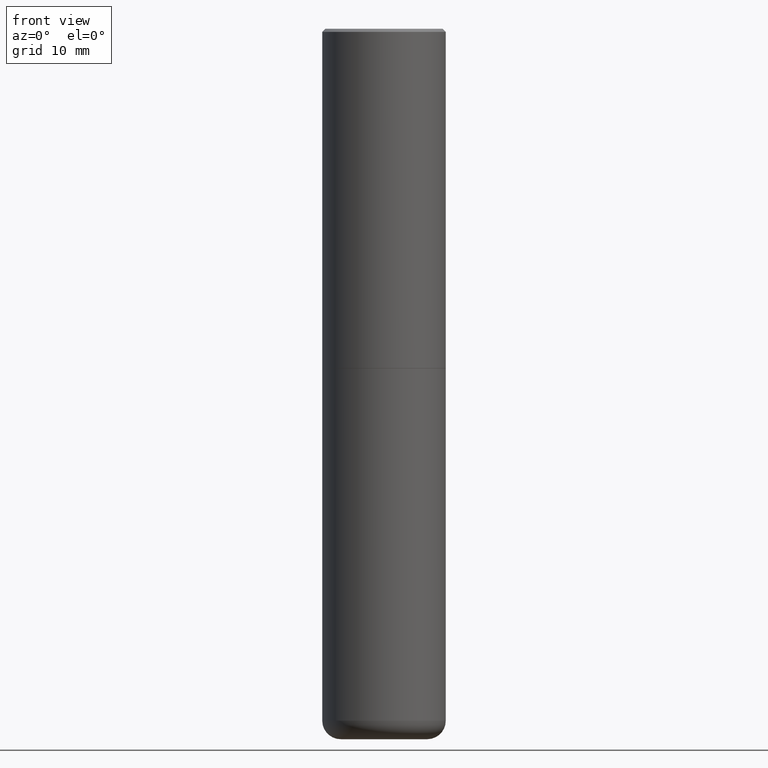
[diagram: clean part render]
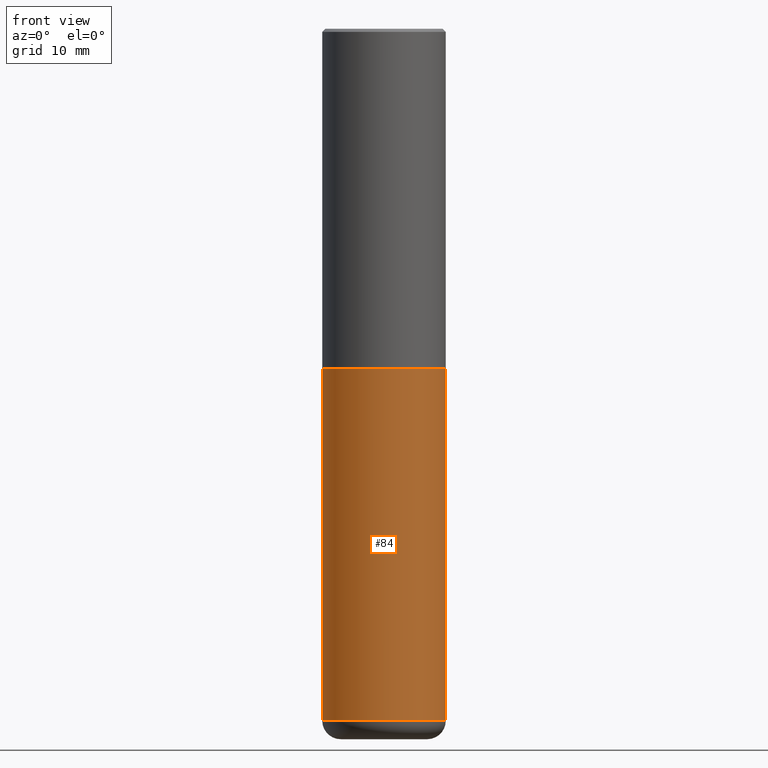
[diagram: same view with one face highlighted and labeled with its STEP entity id]
A machine part, front view. The second image highlights one B-rep face of the part: STEP entity #84.
In plain terms, the highlighted cylindrical surface (partial cylindrical patch) has radius 10 mm, axis along (-0, 0, 1).
Its self-contained STEP definition (entity closure, byte-faithful):
#7 = CARTESIAN_POINT ( 'NONE',  ( 5.295418152913293224E-29, -7.560453691130945845E-15, -2.165399999999999547 ) ) ;
#8 = VERTEX_POINT ( 'NONE', #70 ) ;
#9 = EDGE_CURVE ( 'NONE', #132, #200, #72, .T. ) ;
#22 = ORIENTED_EDGE ( 'NONE', *, *, #146, .T. ) ;
#32 = CARTESIAN_POINT ( 'NONE',  ( 1.078329470087335798E-28, -1.539568696362884818E-14, -4.409499999999999531 ) ) ;
#40 = DIRECTION ( 'NONE',  ( -2.445468806185136877E-29, 3.491481338843145188E-15, 1.000000000000000000 ) ) ;
#45 = LINE ( 'NONE', #109, #345 ) ;
#57 = DIRECTION ( 'NONE',  ( -2.445468806185136597E-29, 3.491481338843145583E-15, 1.000000000000000000 ) ) ;
#70 = CARTESIAN_POINT ( 'NONE',  ( 0.3936999999999998834, -1.814487936983393140E-14, -4.409499999999999531 ) ) ;
#72 = LINE ( 'NONE', #211, #193 ) ;
#84 = ADVANCED_FACE ( 'NONE', ( #89 ), #195, .T. ) ;
#89 = FACE_OUTER_BOUND ( 'NONE', #140, .T. ) ;
#91 = DIRECTION ( 'NONE',  ( 1.000000000000000000, -6.982962677686265133E-15, 0.000000000000000000 ) ) ;
#96 = VERTEX_POINT ( 'NONE', #358 ) ;
#109 = CARTESIAN_POINT ( 'NONE',  ( 0.3937000000000000499, -2.749192406205083217E-15, 1.919750796630860172E-29 ) ) ;
#127 = ORIENTED_EDGE ( 'NONE', *, *, #407, .F. ) ;
#132 = VERTEX_POINT ( 'NONE', #215 ) ;
#140 = EDGE_LOOP ( 'NONE', ( #262, #22, #325, #127 ) ) ;
#146 = EDGE_CURVE ( 'NONE', #132, #8, #340, .T. ) ;
#156 = AXIS2_PLACEMENT_3D ( 'NONE', #32, #302, #168 ) ;
#163 = DIRECTION ( 'NONE',  ( 1.000000000000000000, -6.982962677686265922E-15, 4.876176775795935793E-29 ) ) ;
#168 = DIRECTION ( 'NONE',  ( 1.000000000000000000, -6.982962677686262766E-15, 0.000000000000000000 ) ) ;
#179 = DIRECTION ( 'NONE',  ( -2.445468806185136877E-29, 3.491481338843145188E-15, 1.000000000000000000 ) ) ;
#193 = VECTOR ( 'NONE', #40, 39.37007874015748143 ) ;
#195 = CYLINDRICAL_SURFACE ( 'NONE', #316, 0.3937000000000000499 ) ;
#200 = VERTEX_POINT ( 'NONE', #282 ) ;
#211 = CARTESIAN_POINT ( 'NONE',  ( -0.3937000000000000499, 2.797406750687514786E-15, -1.936584745033356735E-29 ) ) ;
#215 = CARTESIAN_POINT ( 'NONE',  ( -0.3936999999999998834, -1.259828021294133576E-14, -4.409499999999999531 ) ) ;
#225 = CARTESIAN_POINT ( 'NONE',  ( 0.000000000000000000, 0.000000000000000000, 0.000000000000000000 ) ) ;
#233 = EDGE_CURVE ( 'NONE', #8, #96, #45, .T. ) ;
#249 = AXIS2_PLACEMENT_3D ( 'NONE', #7, #272, #91 ) ;
#262 = ORIENTED_EDGE ( 'NONE', *, *, #9, .F. ) ;
#272 = DIRECTION ( 'NONE',  ( -2.445468806185136597E-29, 3.491481338843145583E-15, 1.000000000000000000 ) ) ;
#282 = CARTESIAN_POINT ( 'NONE',  ( -0.3937000000000000499, -8.680663576692383017E-15, -2.165399999999999547 ) ) ;
#302 = DIRECTION ( 'NONE',  ( -2.445468806185136597E-29, 3.491481338843145583E-15, 1.000000000000000000 ) ) ;
#316 = AXIS2_PLACEMENT_3D ( 'NONE', #225, #57, #163 ) ;
#325 = ORIENTED_EDGE ( 'NONE', *, *, #233, .T. ) ;
#340 = CIRCLE ( 'NONE', #156, 0.3937000000000000499 ) ;
#345 = VECTOR ( 'NONE', #179, 39.37007874015748143 ) ;
#358 = CARTESIAN_POINT ( 'NONE',  ( 0.3937000000000000499, -1.030964609733602906E-14, -2.165399999999999547 ) ) ;
#382 = CIRCLE ( 'NONE', #249, 0.3937000000000000499 ) ;
#407 = EDGE_CURVE ( 'NONE', #200, #96, #382, .T. ) ;